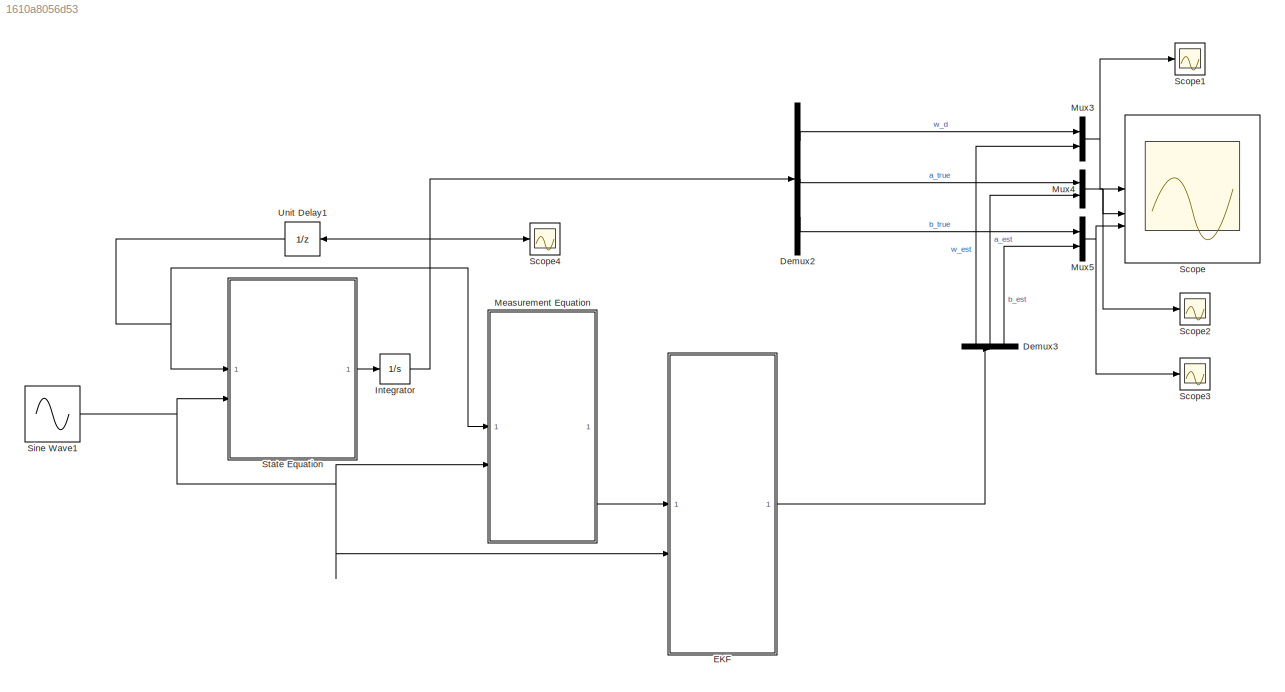
MODEL slx_1610a8056d53
KIND model
CONFIG AbsTol = auto
CONFIG EnableMultiTasking = off
CONFIG FixedStep = 0.001
CONFIG MaxStep = auto
CONFIG MinStep = auto
CONFIG RelTol = 1e-3
CONFIG SampleTimeConstraint = Unconstrained
CONFIG SolverName = ode1
CONFIG StartTime = 0.0
CONFIG StopTime = 10.0
BLOCK [Demux] Demux2
  Outputs = 3
BLOCK [Demux] Demux3
  NameLocation = right
  Outputs = 3
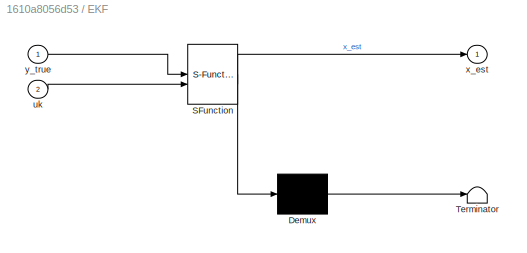
BLOCK [SubSystem] EKF
  ErrorFcn = Stateflow.Translate.translate
  PermitHierarchicalResolution = ExplicitOnly
  SFBlockType = MATLAB Function
  TreatAsAtomicUnit = on
BLOCK [Demux] EKF/ Demux 
  Outputs = 1
BLOCK [S-Function] EKF/ SFunction 
  EnableBusSupport = on
  FunctionName = sf_sfun
  PortCounts = [2 2]
  SFcnIsStateOwnerBlock = off
  SFunctionDeploymentMode = off
  Tag = Stateflow S-Function 3
BLOCK [Terminator] EKF/ Terminator 
BLOCK [Inport] EKF/uk
  Port = 2
BLOCK [Outport] EKF/x_est
BLOCK [Inport] EKF/y_true
BLOCK [Integrator] Integrator
  InitialCondition = [0;30.2;20.3]
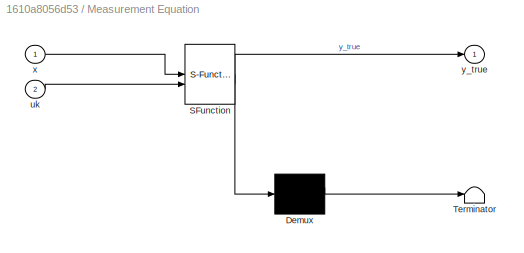
BLOCK [SubSystem] Measurement Equation
  ErrorFcn = Stateflow.Translate.translate
  PermitHierarchicalResolution = ExplicitOnly
  SFBlockType = MATLAB Function
  TreatAsAtomicUnit = on
BLOCK [Demux] Measurement Equation/ Demux 
  Outputs = 1
BLOCK [S-Function] Measurement Equation/ SFunction 
  EnableBusSupport = on
  FunctionName = sf_sfun
  PortCounts = [2 2]
  SFcnIsStateOwnerBlock = off
  SFunctionDeploymentMode = off
  Tag = Stateflow S-Function 1
BLOCK [Terminator] Measurement Equation/ Terminator 
BLOCK [Inport] Measurement Equation/uk
  Port = 2
BLOCK [Inport] Measurement Equation/x
BLOCK [Outport] Measurement Equation/y_true
BLOCK [Mux] Mux3
  DisplayOption = bar
  Inputs = 2
BLOCK [Mux] Mux4
  DisplayOption = bar
  Inputs = 2
BLOCK [Mux] Mux5
  DisplayOption = bar
  Inputs = 2
BLOCK [Scope] Scope
  Floating = off
  NumInputPorts = 3
  ScopeSpecificationString = Simulink.scopes.TimeScopeBlockCfg('CurrentConfiguration', extmgr.ConfigurationSet(extmgr.Configuration('Core','General UI',true,'FigureColor',[1 1 1]),extmgr.Configuration('Core','Source UI',true),extmgr.Configuration('Sources','WiredSimulink',true,'DataLoggingVariableName','ScopeData1'),extmgr.Configuration('Visuals','Time Domain',true,'SerializedDisplays',{struct('MinYLimReal','-6.68351','MaxYLi...<+3050ch>
BLOCK [Scope] Scope1
  Floating = off
  NumInputPorts = 1
  ScopeSpecificationString = Simulink.scopes.TimeScopeBlockCfg('CurrentConfiguration', extmgr.ConfigurationSet(extmgr.Configuration('Core','General UI',true,'FigureColor',[1 1 1]),extmgr.Configuration('Core','Source UI',true),extmgr.Configuration('Sources','WiredSimulink',true,'DataLoggingVariableName','ScopeData2'),extmgr.Configuration('Visuals','Time Domain',true,'SerializedDisplays',{struct('MinYLimReal','-7.53785','MaxYLi...<+1604ch>
BLOCK [Scope] Scope2
  Floating = off
  NumInputPorts = 1
  ScopeSpecificationString = Simulink.scopes.TimeScopeBlockCfg('CurrentConfiguration', extmgr.ConfigurationSet(extmgr.Configuration('Core','General UI',true,'FigureColor',[1 1 1]),extmgr.Configuration('Core','Source UI',true),extmgr.Configuration('Sources','WiredSimulink',true,'DataLoggingVariableName','ScopeData3'),extmgr.Configuration('Visuals','Time Domain',true,'SerializedDisplays',{struct('MinYLimReal','-9.32045','MaxYLi...<+1611ch>
BLOCK [Scope] Scope3
  Floating = off
  NumInputPorts = 1
  ScopeSpecificationString = Simulink.scopes.TimeScopeBlockCfg('CurrentConfiguration', extmgr.ConfigurationSet(extmgr.Configuration('Core','General UI',true,'FigureColor',[1 1 1]),extmgr.Configuration('Core','Source UI',true),extmgr.Configuration('Sources','WiredSimulink',true),extmgr.Configuration('Visuals','Time Domain',true,'SerializedDisplays',{struct('MinYLimReal','-3.27993','MaxYLimReal','20.9835','YLabelReal','','MinYL...<+1554ch>
BLOCK [Scope] Scope4
  Floating = off
  NumInputPorts = 1
  ScopeSpecificationString = Simulink.scopes.TimeScopeBlockCfg('CurrentConfiguration', extmgr.ConfigurationSet(extmgr.Configuration('Core','General UI',true),extmgr.Configuration('Core','Source UI',true),extmgr.Configuration('Sources','WiredSimulink',true,'DataLoggingVariableName','ScopeData1'),extmgr.Configuration('Visuals','Time Domain',true),extmgr.Configuration('Tools','Plot Navigation',true),extmgr.Configuration('Tools',...<+40ch>
BLOCK [Sin] Sine Wave1
  Amplitude = 10
  Frequency = 2*pi*4
  SampleTime = 0.01
  VectorParams1D = off
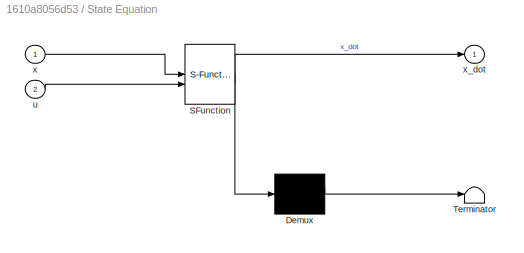
BLOCK [SubSystem] State Equation
  ErrorFcn = Stateflow.Translate.translate
  PermitHierarchicalResolution = ExplicitOnly
  SFBlockType = MATLAB Function
  TreatAsAtomicUnit = on
BLOCK [Demux] State Equation/ Demux 
  Outputs = 1
BLOCK [S-Function] State Equation/ SFunction 
  EnableBusSupport = on
  FunctionName = sf_sfun
  PortCounts = [2 2]
  SFcnIsStateOwnerBlock = off
  SFunctionDeploymentMode = off
  Tag = Stateflow S-Function 2
BLOCK [Terminator] State Equation/ Terminator 
BLOCK [Inport] State Equation/u
  Port = 2
BLOCK [Inport] State Equation/x
BLOCK [Outport] State Equation/x_dot
BLOCK [UnitDelay] Unit Delay1
  HasFrameUpgradeWarning = on
  SampleTime = -1
LINE Demux2:1 -> Mux3:1
LINE Demux2:2 -> Mux4:1
LINE Demux2:3 -> Mux5:1
LINE Demux3:1 -> Mux3:2
LINE Demux3:2 -> Mux4:2
LINE Demux3:3 -> Mux5:2
LINE EKF:1 -> Demux3:1
NET Integrator:1 -> Demux2:1, Scope4:1, Unit Delay1:1
LINE Measurement Equation:1 -> EKF:1
NET Mux3:1 -> Scope1:1, Scope:1
NET Mux4:1 -> Scope2:1, Scope:2
NET Mux5:1 -> Scope3:1, Scope:3
NET Sine Wave1:1 -> EKF:2, Measurement Equation:2, State Equation:2
LINE State Equation:1 -> Integrator:1
NET Unit Delay1:1 -> Measurement Equation:1, State Equation:1
note: NET lines group one-source signal fan-out (src -> all destinations, sorted); 1:1 wires keep LINE
CHART State Equation states=1 transitions=1
  STATE_LABEL 'eML_blk_kernel()'
  STATE_LABEL 'SCRIPT:\nfunction x_dot = fcn(x,u)\n\nx_dot = [0;0;0];\n\nx_dot(1) = -x(2)*x(1)+x(3)*u +sqrt(0.01)*randn; % sqrt(0.02)*randn is model noise\nx_dot(2) = 0;\nx_dot(3) = 0; \n'
CHART EKF states=1 transitions=1
  STATE_LABEL 'eML_blk_kernel()'
  STATE_LABEL 'SCRIPT:\nfunction x_est = fcn(y_true,uk)\n\nTs = 0.001; %Time step \n\n%Initialize initial value \npersistent x_est_p P Qd_est R_est Qc_est; \nif isempty(x_est_p)\n    x_est_p = [0;0;0]; %Inital value of state x\n    P       = 1e1*diag([1,10,5]); % Variance matrix \n    Qc_est  = 1e-1*diag([1,10,10]); % Process noise (small = believe in model)\n    Qd_est  = Ts*Qc_est; % Process noise discretized to discrete...<+625ch>'
CHART Measurement Equation states=1 transitions=1
  STATE_LABEL 'eML_blk_kernel()'
  STATE_LABEL 'SCRIPT:\nfunction y_true = fcn(x,uk)\n\nC = [1 0 0];\nD = 0;\n\ny_true = C*x + D*uk + sqrt(0.02)*randn; % sqrt(0.02)*randn is measurement noise '
CHART  states=0 transitions=0
CHART  states=0 transitions=0
CHART  states=0 transitions=0
